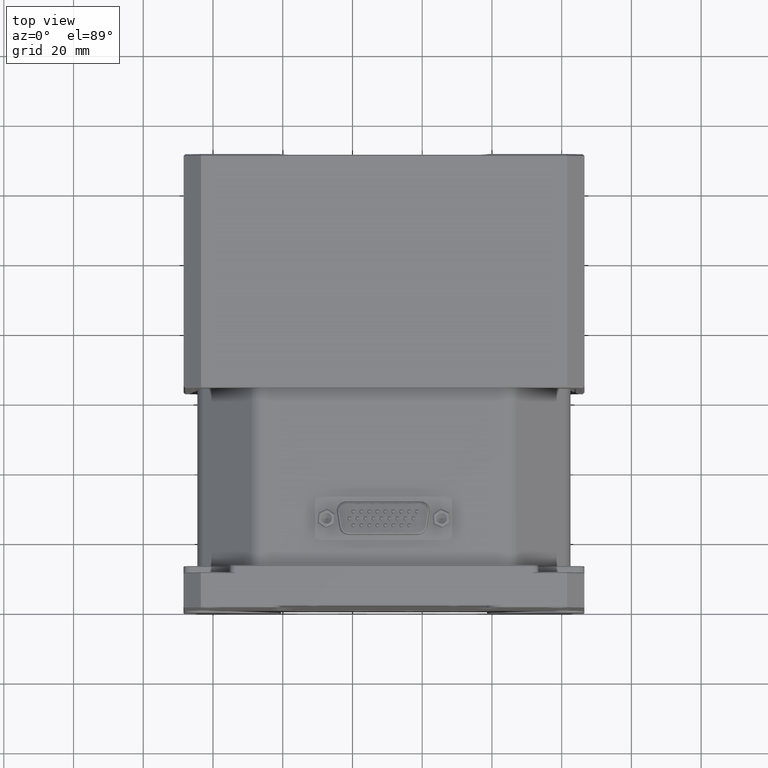
[diagram: clean part render]
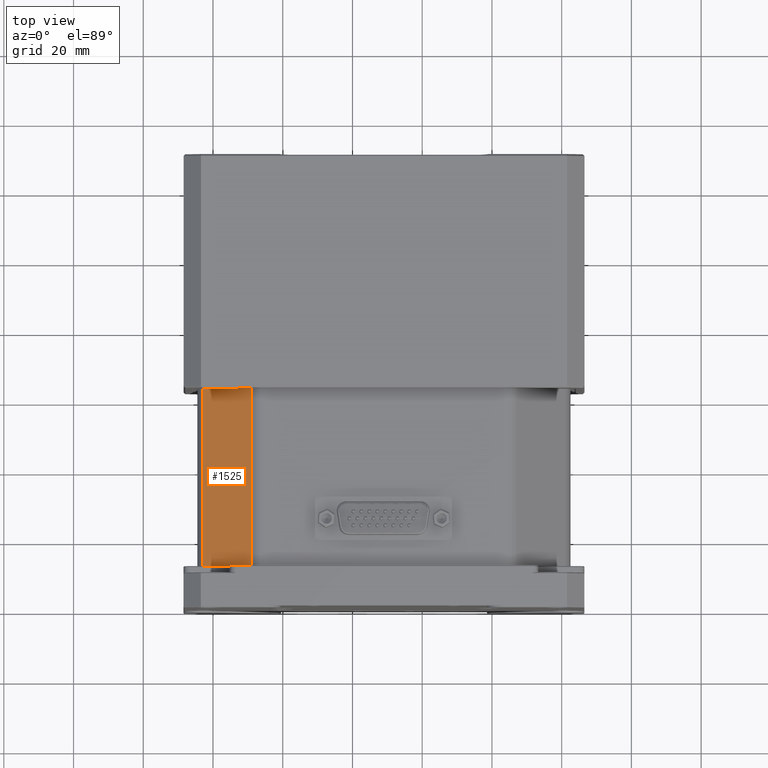
[diagram: same view with one face highlighted and labeled with its STEP entity id]
A machine part, top view. The second image highlights one B-rep face of the part: STEP entity #1525.
In plain terms, the highlighted planar face has unit normal (0.7071, 0, -0.7071).
Its self-contained STEP definition (entity closure, byte-faithful):
#715 = VECTOR ( 'NONE', #1038, 1000.000000000000000 ) ;
#1038 = DIRECTION ( 'NONE',  ( 0.7071067811865480168, 2.615227393714214877E-16, 0.7071067811865470176 ) ) ;
#1525 = ADVANCED_FACE ( 'NONE', ( #43705 ), #39107, .F. ) ;
#4858 = DIRECTION ( 'NONE',  ( 0.7071067811865470176, 1.010031365066494162E-16, -0.7071067811865480168 ) ) ;
#5834 = VECTOR ( 'NONE', #22183, 1000.000000000000000 ) ;
#6329 = CARTESIAN_POINT ( 'NONE',  ( -68.93597073408290044, 117.0000000000000000, -1.464466094067274238 ) ) ;
#7035 = LINE ( 'NONE', #7288, #15130 ) ;
#7288 = CARTESIAN_POINT ( 'NONE',  ( -83.00703854594840436, 117.0000000000000000, -15.53553390593270045 ) ) ;
#7473 = EDGE_CURVE ( 'NONE', #29269, #22142, #19478, .T. ) ;
#8340 = ORIENTED_EDGE ( 'NONE', *, *, #14431, .F. ) ;
#8469 = CARTESIAN_POINT ( 'NONE',  ( -83.00703854594840436, 12.00000000000000000, -15.53553390593275196 ) ) ;
#10134 = DIRECTION ( 'NONE',  ( -7.142000274496228684E-17, 1.000000000000000000, 7.142000274496238545E-17 ) ) ;
#11948 = EDGE_CURVE ( 'NONE', #18456, #22142, #22431, .T. ) ;
#13364 = CARTESIAN_POINT ( 'NONE',  ( -68.93597073408290044, 63.00000000000000000, -1.464466094067260027 ) ) ;
#14431 = EDGE_CURVE ( 'NONE', #45512, #18456, #32704, .T. ) ;
#14888 = VECTOR ( 'NONE', #49504, 1000.000000000000000 ) ;
#15130 = VECTOR ( 'NONE', #10134, 1000.000000000000000 ) ;
#18456 = VERTEX_POINT ( 'NONE', #13364 ) ;
#19478 = LINE ( 'NONE', #8469, #715 ) ;
#22142 = VERTEX_POINT ( 'NONE', #32498 ) ;
#22183 = DIRECTION ( 'NONE',  ( 3.691380968366389923E-16, -1.000000000000000000, 2.262980913479740076E-16 ) ) ;
#22431 = LINE ( 'NONE', #6329, #5834 ) ;
#24718 = EDGE_LOOP ( 'NONE', ( #8340, #48639, #30297, #33366 ) ) ;
#29269 = VERTEX_POINT ( 'NONE', #45239 ) ;
#30297 = ORIENTED_EDGE ( 'NONE', *, *, #7473, .T. ) ;
#32498 = CARTESIAN_POINT ( 'NONE',  ( -68.93597073408290044, 12.00000000000000000, -1.464466094067252033 ) ) ;
#32704 = LINE ( 'NONE', #33656, #14888 ) ;
#33366 = ORIENTED_EDGE ( 'NONE', *, *, #11948, .F. ) ;
#33656 = CARTESIAN_POINT ( 'NONE',  ( -67.47150464001569503, 63.00000000000000000, -2.467336185994964968E-14 ) ) ;
#35036 = CARTESIAN_POINT ( 'NONE',  ( -67.47150464001569503, 117.0000000000000000, -2.081668171172170091E-14 ) ) ;
#39107 = PLANE ( 'NONE',  #47951 ) ;
#42248 = EDGE_CURVE ( 'NONE', #29269, #45512, #7035, .T. ) ;
#42717 = DIRECTION ( 'NONE',  ( 0.000000000000000000, -1.000000000000000000, -1.428400054899245737E-16 ) ) ;
#43705 = FACE_OUTER_BOUND ( 'NONE', #24718, .T. ) ;
#44793 = CARTESIAN_POINT ( 'NONE',  ( -83.00703854594840436, 63.00000000000000000, -15.53553390593275196 ) ) ;
#45239 = CARTESIAN_POINT ( 'NONE',  ( -83.00703854594840436, 12.00000000000000000, -15.53553390593275196 ) ) ;
#45512 = VERTEX_POINT ( 'NONE', #44793 ) ;
#47951 = AXIS2_PLACEMENT_3D ( 'NONE', #35036, #4858, #42717 ) ;
#48639 = ORIENTED_EDGE ( 'NONE', *, *, #42248, .F. ) ;
#49504 = DIRECTION ( 'NONE',  ( 0.7071067811865480168, 0.000000000000000000, 0.7071067811865470176 ) ) ;